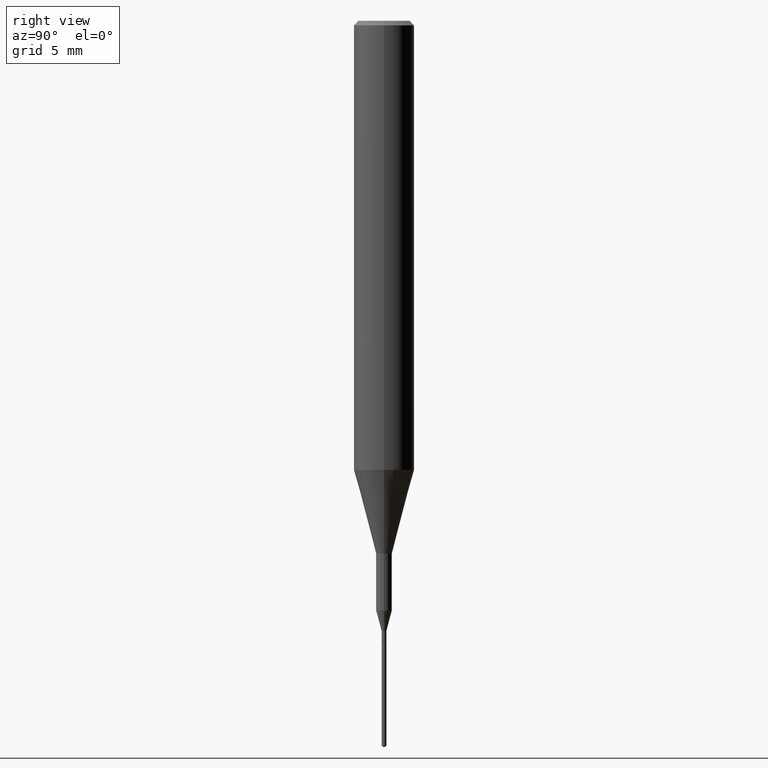
[diagram: clean part render]
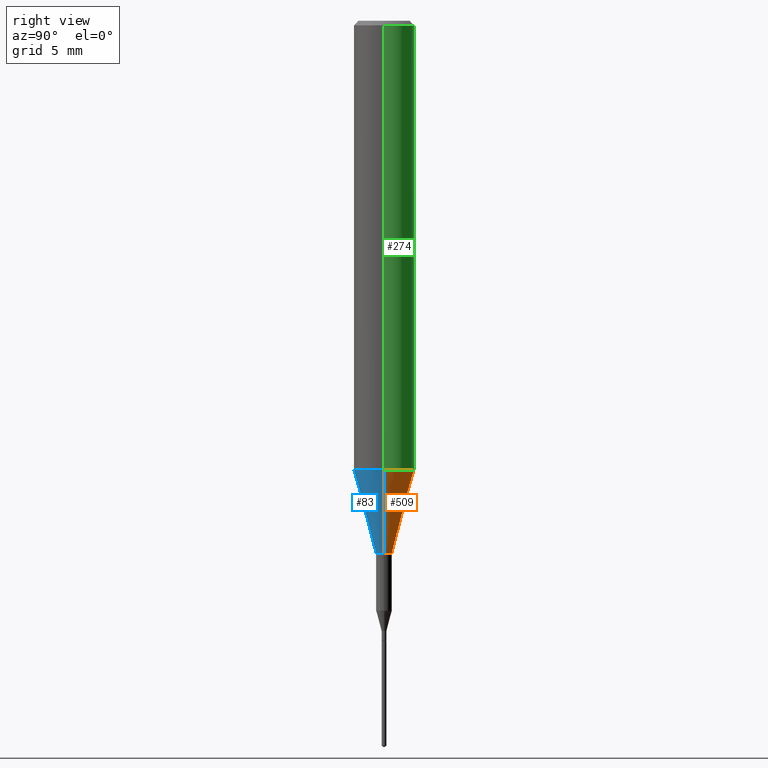
[diagram: same view with three faces highlighted in distinct colors, each labeled with its STEP entity id]
A machine part, right view with three faces highlighted in distinct colors.
Their STEP definitions:

[orange] entity #509 — the highlighted conical surface has half-angle 15 deg.
#19 = EDGE_CURVE ( 'NONE', #222, #269, #352, .T. ) ;
#21 = ORIENTED_EDGE ( 'NONE', *, *, #479, .T. ) ;
#27 = CARTESIAN_POINT ( 'NONE',  ( 0.06250000000000011102, -3.674409299134196572E-15, -0.9273926501499395458 ) ) ;
#33 = VERTEX_POINT ( 'NONE', #538 ) ;
#43 = EDGE_LOOP ( 'NONE', ( #21, #213, #64, #391 ) ) ;
#64 = ORIENTED_EDGE ( 'NONE', *, *, #413, .F. ) ;
#68 = CARTESIAN_POINT ( 'NONE',  ( 2.690015686803650369E-29, -3.840629472727460101E-15, -1.100000000000000089 ) ) ;
#80 = VERTEX_POINT ( 'NONE', #229 ) ;
#86 = CARTESIAN_POINT ( 'NONE',  ( 2.267909797027042920E-29, -3.237974131778804114E-15, -0.9273926501499395458 ) ) ;
#100 = CIRCLE ( 'NONE', #514, 0.06250000000000011102 ) ;
#207 = CARTESIAN_POINT ( 'NONE',  ( 0.06250000000000011102, -3.674409299134196572E-15, -0.9273926501499395458 ) ) ;
#213 = ORIENTED_EDGE ( 'NONE', *, *, #548, .T. ) ;
#222 = VERTEX_POINT ( 'NONE', #460 ) ;
#229 = CARTESIAN_POINT ( 'NONE',  ( -0.01624999999999999709, -3.931188865428788594E-15, -1.100000000000000089 ) ) ;
#254 = DIRECTION ( 'NONE',  ( -2.445468806185136597E-29, 3.491481338843145583E-15, 1.000000000000000000 ) ) ;
#265 = DIRECTION ( 'NONE',  ( -0.2588190451025214611, 5.211531920934550253E-15, 0.9659258262890679791 ) ) ;
#269 = VERTEX_POINT ( 'NONE', #27 ) ;
#300 = FACE_OUTER_BOUND ( 'NONE', #43, .T. ) ;
#316 = AXIS2_PLACEMENT_3D ( 'NONE', #330, #505, #532 ) ;
#330 = CARTESIAN_POINT ( 'NONE',  ( 2.267909797027042920E-29, -3.237974131778804114E-15, -0.9273926501499395458 ) ) ;
#352 = LINE ( 'NONE', #207, #388 ) ;
#371 = VECTOR ( 'NONE', #265, 39.37007874015748143 ) ;
#388 = VECTOR ( 'NONE', #566, 39.37007874015748143 ) ;
#391 = ORIENTED_EDGE ( 'NONE', *, *, #19, .F. ) ;
#392 = CIRCLE ( 'NONE', #551, 0.01624999999999999709 ) ;
#413 = EDGE_CURVE ( 'NONE', #269, #33, #100, .T. ) ;
#417 = DIRECTION ( 'NONE',  ( 1.000000000000000000, -6.982962677686265922E-15, 0.000000000000000000 ) ) ;
#432 = DIRECTION ( 'NONE',  ( 1.000000000000000000, -6.982962677686259611E-15, 0.000000000000000000 ) ) ;
#452 = DIRECTION ( 'NONE',  ( -2.445468806185136597E-29, 3.491481338843145583E-15, 1.000000000000000000 ) ) ;
#460 = CARTESIAN_POINT ( 'NONE',  ( 0.01624999999999999709, -3.954102616239861778E-15, -1.100000000000000089 ) ) ;
#479 = EDGE_CURVE ( 'NONE', #222, #80, #392, .T. ) ;
#505 = DIRECTION ( 'NONE',  ( -2.445468806185136597E-29, 3.491481338843145583E-15, 1.000000000000000000 ) ) ;
#509 = ADVANCED_FACE ( 'NONE', ( #300 ), #574, .T. ) ;
#514 = AXIS2_PLACEMENT_3D ( 'NONE', #86, #452, #417 ) ;
#528 = CARTESIAN_POINT ( 'NONE',  ( -0.06250000000000011102, -2.793884921928740709E-15, -0.9273926501499395458 ) ) ;
#532 = DIRECTION ( 'NONE',  ( 1.000000000000000000, -6.982962677686265922E-15, 0.000000000000000000 ) ) ;
#538 = CARTESIAN_POINT ( 'NONE',  ( -0.06250000000000011102, -2.793884921928740709E-15, -0.9273926501499395458 ) ) ;
#548 = EDGE_CURVE ( 'NONE', #80, #33, #570, .T. ) ;
#551 = AXIS2_PLACEMENT_3D ( 'NONE', #68, #254, #432 ) ;
#566 = DIRECTION ( 'NONE',  ( 0.2588190451025214611, 1.565188264969620982E-15, 0.9659258262890679791 ) ) ;
#570 = LINE ( 'NONE', #528, #371 ) ;
#574 = CONICAL_SURFACE ( 'NONE', #316, 0.06250000000000011102, 0.2617993877991501850 ) ;

[blue] entity #83 — the highlighted conical surface has half-angle 15 deg.
#4 = AXIS2_PLACEMENT_3D ( 'NONE', #498, #16, #419 ) ;
#16 = DIRECTION ( 'NONE',  ( -2.445468806185136597E-29, 3.491481338843145583E-15, 1.000000000000000000 ) ) ;
#19 = EDGE_CURVE ( 'NONE', #222, #269, #352, .T. ) ;
#27 = CARTESIAN_POINT ( 'NONE',  ( 0.06250000000000011102, -3.674409299134196572E-15, -0.9273926501499395458 ) ) ;
#33 = VERTEX_POINT ( 'NONE', #538 ) ;
#70 = DIRECTION ( 'NONE',  ( 1.000000000000000000, -6.982962677686265922E-15, 0.000000000000000000 ) ) ;
#80 = VERTEX_POINT ( 'NONE', #229 ) ;
#83 = ADVANCED_FACE ( 'NONE', ( #409 ), #466, .T. ) ;
#139 = CIRCLE ( 'NONE', #4, 0.01624999999999999709 ) ;
#187 = EDGE_CURVE ( 'NONE', #33, #269, #496, .T. ) ;
#207 = CARTESIAN_POINT ( 'NONE',  ( 0.06250000000000011102, -3.674409299134196572E-15, -0.9273926501499395458 ) ) ;
#219 = ORIENTED_EDGE ( 'NONE', *, *, #389, .T. ) ;
#222 = VERTEX_POINT ( 'NONE', #460 ) ;
#229 = CARTESIAN_POINT ( 'NONE',  ( -0.01624999999999999709, -3.931188865428788594E-15, -1.100000000000000089 ) ) ;
#246 = EDGE_LOOP ( 'NONE', ( #485, #219, #351, #338 ) ) ;
#265 = DIRECTION ( 'NONE',  ( -0.2588190451025214611, 5.211531920934550253E-15, 0.9659258262890679791 ) ) ;
#269 = VERTEX_POINT ( 'NONE', #27 ) ;
#338 = ORIENTED_EDGE ( 'NONE', *, *, #187, .F. ) ;
#351 = ORIENTED_EDGE ( 'NONE', *, *, #19, .T. ) ;
#352 = LINE ( 'NONE', #207, #388 ) ;
#359 = CARTESIAN_POINT ( 'NONE',  ( 2.267909797027042920E-29, -3.237974131778804114E-15, -0.9273926501499395458 ) ) ;
#366 = AXIS2_PLACEMENT_3D ( 'NONE', #359, #414, #70 ) ;
#368 = AXIS2_PLACEMENT_3D ( 'NONE', #463, #549, #465 ) ;
#371 = VECTOR ( 'NONE', #265, 39.37007874015748143 ) ;
#388 = VECTOR ( 'NONE', #566, 39.37007874015748143 ) ;
#389 = EDGE_CURVE ( 'NONE', #80, #222, #139, .T. ) ;
#409 = FACE_OUTER_BOUND ( 'NONE', #246, .T. ) ;
#414 = DIRECTION ( 'NONE',  ( -2.445468806185136597E-29, 3.491481338843145583E-15, 1.000000000000000000 ) ) ;
#419 = DIRECTION ( 'NONE',  ( 1.000000000000000000, -6.982962677686259611E-15, 0.000000000000000000 ) ) ;
#460 = CARTESIAN_POINT ( 'NONE',  ( 0.01624999999999999709, -3.954102616239861778E-15, -1.100000000000000089 ) ) ;
#463 = CARTESIAN_POINT ( 'NONE',  ( 2.267909797027042920E-29, -3.237974131778804114E-15, -0.9273926501499395458 ) ) ;
#465 = DIRECTION ( 'NONE',  ( 1.000000000000000000, -6.982962677686265922E-15, 0.000000000000000000 ) ) ;
#466 = CONICAL_SURFACE ( 'NONE', #366, 0.06250000000000011102, 0.2617993877991501850 ) ;
#485 = ORIENTED_EDGE ( 'NONE', *, *, #548, .F. ) ;
#496 = CIRCLE ( 'NONE', #368, 0.06250000000000011102 ) ;
#498 = CARTESIAN_POINT ( 'NONE',  ( 2.690015686803650369E-29, -3.840629472727460101E-15, -1.100000000000000089 ) ) ;
#528 = CARTESIAN_POINT ( 'NONE',  ( -0.06250000000000011102, -2.793884921928740709E-15, -0.9273926501499395458 ) ) ;
#538 = CARTESIAN_POINT ( 'NONE',  ( -0.06250000000000011102, -2.793884921928740709E-15, -0.9273926501499395458 ) ) ;
#548 = EDGE_CURVE ( 'NONE', #80, #33, #570, .T. ) ;
#549 = DIRECTION ( 'NONE',  ( -2.445468806185136597E-29, 3.491481338843145583E-15, 1.000000000000000000 ) ) ;
#566 = DIRECTION ( 'NONE',  ( 0.2588190451025214611, 1.565188264969620982E-15, 0.9659258262890679791 ) ) ;
#570 = LINE ( 'NONE', #528, #371 ) ;

[green] entity #274 — the highlighted cylindrical surface (edge-blend (fillet) strip) has radius 1.5875 mm, axis along (-0, 0, 1).
#15 = LINE ( 'NONE', #138, #185 ) ;
#27 = CARTESIAN_POINT ( 'NONE',  ( 0.06250000000000011102, -3.674409299134196572E-15, -0.9273926501499395458 ) ) ;
#33 = VERTEX_POINT ( 'NONE', #538 ) ;
#39 = CYLINDRICAL_SURFACE ( 'NONE', #545, 0.06250000000000005551 ) ;
#81 = EDGE_LOOP ( 'NONE', ( #530, #164, #188, #310 ) ) ;
#86 = CARTESIAN_POINT ( 'NONE',  ( 2.267909797027042920E-29, -3.237974131778804114E-15, -0.9273926501499395458 ) ) ;
#99 = DIRECTION ( 'NONE',  ( -2.445468806185136597E-29, 3.491481338843145583E-15, 1.000000000000000000 ) ) ;
#100 = CIRCLE ( 'NONE', #514, 0.06250000000000011102 ) ;
#138 = CARTESIAN_POINT ( 'NONE',  ( 0.06250000000000005551, -4.364351673553920638E-16, 3.047610484872462323E-30 ) ) ;
#143 = DIRECTION ( 'NONE',  ( 1.000000000000000000, -6.982962677686266711E-15, 0.000000000000000000 ) ) ;
#164 = ORIENTED_EDGE ( 'NONE', *, *, #541, .T. ) ;
#185 = VECTOR ( 'NONE', #469, 39.37007874015748143 ) ;
#188 = ORIENTED_EDGE ( 'NONE', *, *, #335, .F. ) ;
#206 = VERTEX_POINT ( 'NONE', #423 ) ;
#218 = EDGE_CURVE ( 'NONE', #269, #404, #15, .T. ) ;
#269 = VERTEX_POINT ( 'NONE', #27 ) ;
#274 = ADVANCED_FACE ( 'NONE', ( #280 ), #39, .T. ) ;
#280 = FACE_OUTER_BOUND ( 'NONE', #81, .T. ) ;
#287 = AXIS2_PLACEMENT_3D ( 'NONE', #367, #99, #143 ) ;
#310 = ORIENTED_EDGE ( 'NONE', *, *, #218, .F. ) ;
#320 = DIRECTION ( 'NONE',  ( -2.445468806185136877E-29, 3.491481338843145188E-15, 1.000000000000000000 ) ) ;
#328 = DIRECTION ( 'NONE',  ( 1.000000000000000000, -6.982962677686266711E-15, 4.876176775795935232E-29 ) ) ;
#335 = EDGE_CURVE ( 'NONE', #404, #206, #552, .T. ) ;
#367 = CARTESIAN_POINT ( 'NONE',  ( 2.292627005798582375E-31, -3.273263755165473266E-17, -0.009375000000000069042 ) ) ;
#404 = VERTEX_POINT ( 'NONE', #550 ) ;
#406 = CARTESIAN_POINT ( 'NONE',  ( -0.06250000000000005551, 4.440892098500630106E-16, -3.074334431409318916E-30 ) ) ;
#413 = EDGE_CURVE ( 'NONE', #269, #33, #100, .T. ) ;
#417 = DIRECTION ( 'NONE',  ( 1.000000000000000000, -6.982962677686265922E-15, 0.000000000000000000 ) ) ;
#423 = CARTESIAN_POINT ( 'NONE',  ( -0.06250000000000000000, -1.191264174815165938E-15, -0.009375000000000069042 ) ) ;
#452 = DIRECTION ( 'NONE',  ( -2.445468806185136597E-29, 3.491481338843145583E-15, 1.000000000000000000 ) ) ;
#469 = DIRECTION ( 'NONE',  ( -2.445468806185136877E-29, 3.491481338843145188E-15, 1.000000000000000000 ) ) ;
#514 = AXIS2_PLACEMENT_3D ( 'NONE', #86, #452, #417 ) ;
#530 = ORIENTED_EDGE ( 'NONE', *, *, #413, .T. ) ;
#534 = VECTOR ( 'NONE', #320, 39.37007874015748143 ) ;
#538 = CARTESIAN_POINT ( 'NONE',  ( -0.06250000000000011102, -2.793884921928740709E-15, -0.9273926501499395458 ) ) ;
#541 = EDGE_CURVE ( 'NONE', #33, #206, #577, .T. ) ;
#545 = AXIS2_PLACEMENT_3D ( 'NONE', #568, #547, #328 ) ;
#547 = DIRECTION ( 'NONE',  ( -2.445468806185136597E-29, 3.491481338843145583E-15, 1.000000000000000000 ) ) ;
#550 = CARTESIAN_POINT ( 'NONE',  ( 0.06250000000000000000, -4.691678049070464390E-16, -0.009375000000000069042 ) ) ;
#552 = CIRCLE ( 'NONE', #287, 0.06250000000000000000 ) ;
#568 = CARTESIAN_POINT ( 'NONE',  ( 0.000000000000000000, 0.000000000000000000, 0.000000000000000000 ) ) ;
#577 = LINE ( 'NONE', #406, #534 ) ;